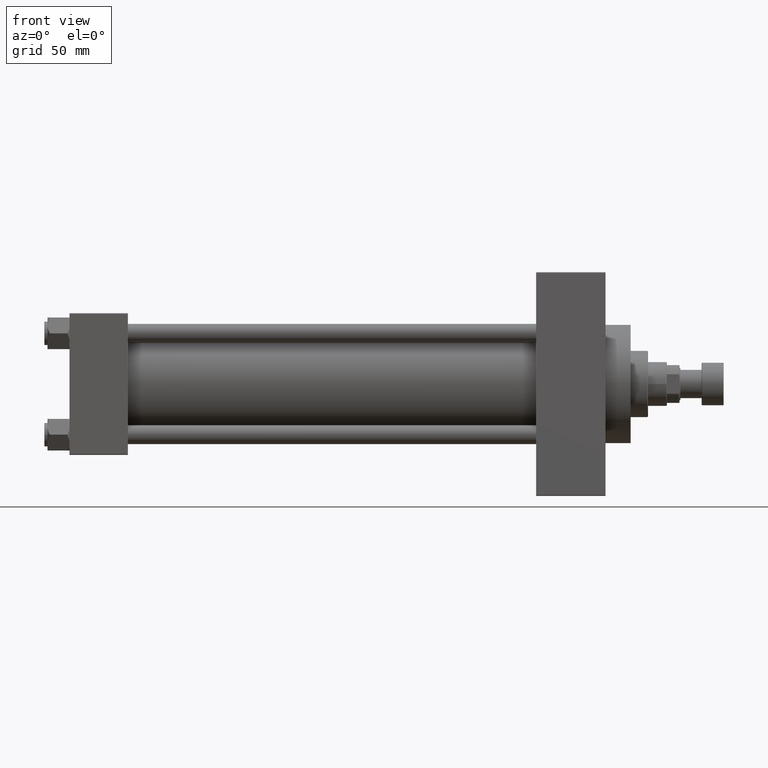
[diagram: clean part render]
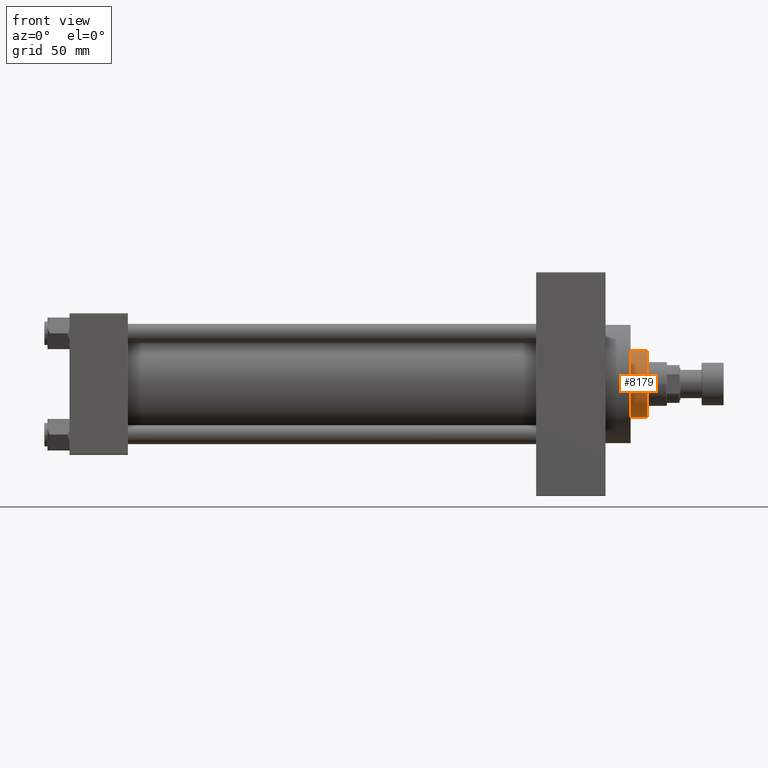
[diagram: same view with one face highlighted and labeled with its STEP entity id]
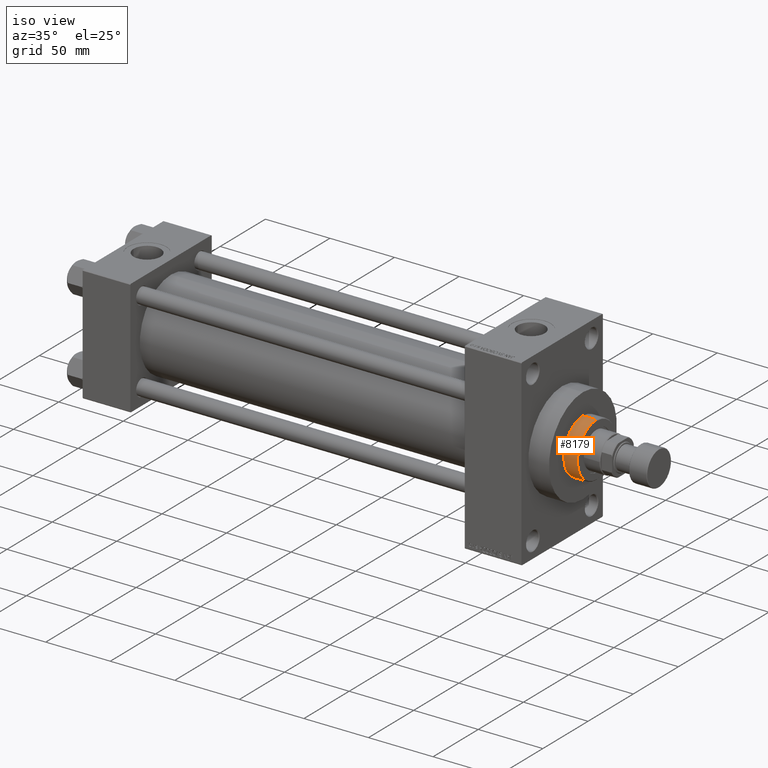
[diagram: same view with one face highlighted and labeled with its STEP entity id]
A machine part, front view. The second image highlights one B-rep face of the part: STEP entity #8179.
A second angle (iso view) of the same face is appended — the face is thin or edge-on in the first view.
In plain terms, the highlighted cylindrical surface (edge-blend (fillet) strip) has radius 21 mm, axis along (-1, 0, 0).
Its self-contained STEP definition (entity closure, byte-faithful):
#2954 = DIRECTION ( 'NONE',  ( 1.000000000000000000, 0.000000000000000000, 0.000000000000000000 ) ) ;
#3050 = VERTEX_POINT ( 'NONE', #4000 ) ;
#3706 = VERTEX_POINT ( 'NONE', #43844 ) ;
#4000 = CARTESIAN_POINT ( 'NONE',  ( -21.00000000000000000, 0.000000000000000000, 43.25999999999999801 ) ) ;
#4297 = EDGE_CURVE ( 'NONE', #49319, #45230, #15511, .T. ) ;
#4751 = CARTESIAN_POINT ( 'NONE',  ( 21.00000000000000000, 2.571758278209441661E-15, 53.76000000000001933 ) ) ;
#6093 = VECTOR ( 'NONE', #34403, 1000.000000000000000 ) ;
#7485 = DIRECTION ( 'NONE',  ( 0.000000000000000000, 0.000000000000000000, 1.000000000000000000 ) ) ;
#8179 = ADVANCED_FACE ( 'NONE', ( #11762 ), #41923, .T. ) ;
#8912 = CARTESIAN_POINT ( 'NONE',  ( -21.00000000000000000, 0.000000000000000000, 53.76000000000001933 ) ) ;
#11762 = FACE_OUTER_BOUND ( 'NONE', #33813, .T. ) ;
#12757 = DIRECTION ( 'NONE',  ( 0.000000000000000000, 0.000000000000000000, -1.000000000000000000 ) ) ;
#15511 = CIRCLE ( 'NONE', #31539, 21.00000000000000000 ) ;
#16893 = ORIENTED_EDGE ( 'NONE', *, *, #47240, .T. ) ;
#17253 = DIRECTION ( 'NONE',  ( 1.000000000000000000, 0.000000000000000000, 0.000000000000000000 ) ) ;
#18799 = DIRECTION ( 'NONE',  ( -0.000000000000000000, -0.000000000000000000, -1.000000000000000000 ) ) ;
#22919 = AXIS2_PLACEMENT_3D ( 'NONE', #32641, #7485, #2954 ) ;
#23333 = DIRECTION ( 'NONE',  ( -1.000000000000000000, 0.000000000000000000, 0.000000000000000000 ) ) ;
#28557 = CARTESIAN_POINT ( 'NONE',  ( 0.000000000000000000, 0.000000000000000000, 53.76000000000001933 ) ) ;
#30617 = LINE ( 'NONE', #45726, #6093 ) ;
#31539 = AXIS2_PLACEMENT_3D ( 'NONE', #28557, #12757, #17253 ) ;
#31715 = AXIS2_PLACEMENT_3D ( 'NONE', #42434, #18799, #23333 ) ;
#32641 = CARTESIAN_POINT ( 'NONE',  ( 0.000000000000000000, 0.000000000000000000, 43.25999999999999801 ) ) ;
#33813 = EDGE_LOOP ( 'NONE', ( #42684, #36007, #16893, #36607 ) ) ;
#34403 = DIRECTION ( 'NONE',  ( -0.000000000000000000, -0.000000000000000000, -1.000000000000000000 ) ) ;
#34619 = DIRECTION ( 'NONE',  ( -0.000000000000000000, -0.000000000000000000, -1.000000000000000000 ) ) ;
#36007 = ORIENTED_EDGE ( 'NONE', *, *, #40895, .T. ) ;
#36607 = ORIENTED_EDGE ( 'NONE', *, *, #39129, .F. ) ;
#38200 = VECTOR ( 'NONE', #34619, 1000.000000000000000 ) ;
#39129 = EDGE_CURVE ( 'NONE', #49319, #3050, #44946, .T. ) ;
#40546 = CIRCLE ( 'NONE', #22919, 21.00000000000000000 ) ;
#40895 = EDGE_CURVE ( 'NONE', #45230, #3706, #30617, .T. ) ;
#41923 = CYLINDRICAL_SURFACE ( 'NONE', #31715, 21.00000000000000000 ) ;
#42434 = CARTESIAN_POINT ( 'NONE',  ( 0.000000000000000000, 0.000000000000000000, 54.26000000000000512 ) ) ;
#42684 = ORIENTED_EDGE ( 'NONE', *, *, #4297, .T. ) ;
#43844 = CARTESIAN_POINT ( 'NONE',  ( 21.00000000000000000, 2.571758278209441661E-15, 43.25999999999999801 ) ) ;
#44946 = LINE ( 'NONE', #45445, #38200 ) ;
#45230 = VERTEX_POINT ( 'NONE', #4751 ) ;
#45445 = CARTESIAN_POINT ( 'NONE',  ( -21.00000000000000000, 0.000000000000000000, 54.26000000000000512 ) ) ;
#45726 = CARTESIAN_POINT ( 'NONE',  ( 21.00000000000000000, 2.571758278209441661E-15, 54.26000000000000512 ) ) ;
#47240 = EDGE_CURVE ( 'NONE', #3706, #3050, #40546, .T. ) ;
#49319 = VERTEX_POINT ( 'NONE', #8912 ) ;